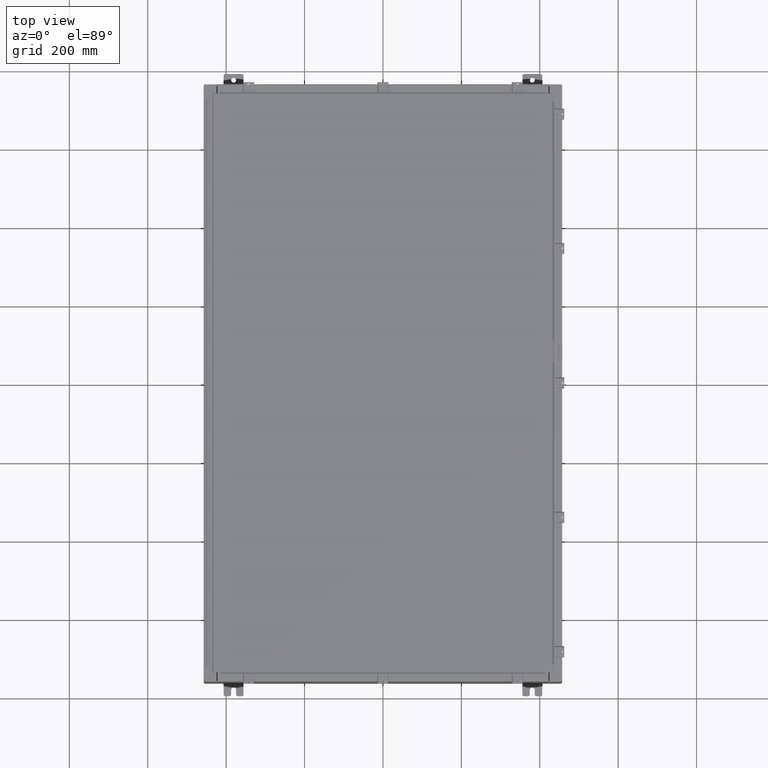
[diagram: clean part render]
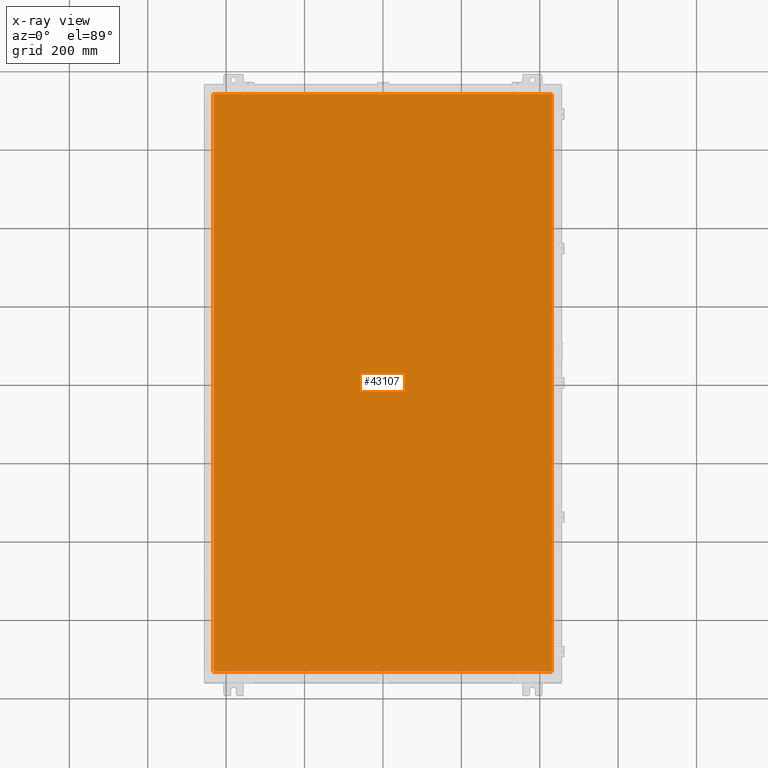
[diagram: x-ray — body ghosted, one internal face saturated and labeled with its STEP entity id]
A machine part, top view, then the same camera in x-ray: the body is ghosted and one INTERNAL B-rep face — a face not visible from any outside direction — is saturated and labeled: STEP entity #43107.
In plain terms, the highlighted planar face has unit normal (0, 0, -1).
Its self-contained STEP definition (entity closure, byte-faithful):
#245 = CARTESIAN_POINT ( 'NONE',  ( -16.99029999999999800, -29.00630000000000000, -0.07470000000000000300 ) ) ;
#1285 = CARTESIAN_POINT ( 'NONE',  ( 16.99030000000000500, -29.00630000000000000, -0.07470000000000019700 ) ) ;
#2215 = ORIENTED_EDGE ( 'NONE', *, *, #3431, .F. ) ;
#3431 = EDGE_CURVE ( 'NONE', #47772, #48023, #16911, .T. ) ;
#3551 = DIRECTION ( 'NONE',  ( 1.000000000000000000, -0.0000000000000000000, -0.0000000000000000000 ) ) ;
#5690 = PLANE ( 'NONE',  #40973 ) ;
#7181 = CARTESIAN_POINT ( 'NONE',  ( -16.99029999999999400, 29.00630000000000000, -0.07469999999999582500 ) ) ;
#8150 = ORIENTED_EDGE ( 'NONE', *, *, #15171, .F. ) ;
#10134 = ORIENTED_EDGE ( 'NONE', *, *, #42626, .F. ) ;
#12218 = VECTOR ( 'NONE', #49464, 39.37007874015748100 ) ;
#14437 = CARTESIAN_POINT ( 'NONE',  ( 16.99030000000000500, -29.00630000000000000, -0.07470000000000000300 ) ) ;
#15171 = EDGE_CURVE ( 'NONE', #48306, #47772, #52269, .T. ) ;
#15451 = CARTESIAN_POINT ( 'NONE',  ( 0.0000000000000000000, 0.0000000000000000000, -0.07470000000000000300 ) ) ;
#16171 = ORIENTED_EDGE ( 'NONE', *, *, #33426, .F. ) ;
#16911 = LINE ( 'NONE', #32682, #39736 ) ;
#20318 = DIRECTION ( 'NONE',  ( -1.000000000000000000, 0.0000000000000000000, -0.0000000000000000000 ) ) ;
#25974 = FACE_OUTER_BOUND ( 'NONE', #52279, .T. ) ;
#27109 = CARTESIAN_POINT ( 'NONE',  ( -16.99029999999999400, 29.00630000000000000, -0.07470000000000000300 ) ) ;
#27974 = VECTOR ( 'NONE', #41180, 39.37007874015748100 ) ;
#32682 = CARTESIAN_POINT ( 'NONE',  ( -16.99029999999999800, -29.00630000000000300, -0.07469999999999804600 ) ) ;
#33426 = EDGE_CURVE ( 'NONE', #48023, #39554, #35399, .T. ) ;
#35399 = LINE ( 'NONE', #1285, #46736 ) ;
#38121 = LINE ( 'NONE', #44582, #12218 ) ;
#39554 = VERTEX_POINT ( 'NONE', #41171 ) ;
#39736 = VECTOR ( 'NONE', #3551, 39.37007874015748100 ) ;
#40201 = DIRECTION ( 'NONE',  ( 0.0000000000000000000, 1.000000000000000000, 0.0000000000000000000 ) ) ;
#40973 = AXIS2_PLACEMENT_3D ( 'NONE', #15451, #49403, #20318 ) ;
#41171 = CARTESIAN_POINT ( 'NONE',  ( 16.99030000000000500, 29.00630000000000000, -0.07470000000000000300 ) ) ;
#41180 = DIRECTION ( 'NONE',  ( 0.0000000000000000000, -1.000000000000000000, 0.0000000000000000000 ) ) ;
#42626 = EDGE_CURVE ( 'NONE', #39554, #48306, #38121, .T. ) ;
#43107 = ADVANCED_FACE ( 'NONE', ( #25974 ), #5690, .T. ) ;
#44582 = CARTESIAN_POINT ( 'NONE',  ( 16.99030000000000500, 29.00630000000000300, -0.07469999999999804600 ) ) ;
#46736 = VECTOR ( 'NONE', #40201, 39.37007874015748100 ) ;
#47772 = VERTEX_POINT ( 'NONE', #245 ) ;
#48023 = VERTEX_POINT ( 'NONE', #14437 ) ;
#48306 = VERTEX_POINT ( 'NONE', #27109 ) ;
#49403 = DIRECTION ( 'NONE',  ( 0.0000000000000000000, 0.0000000000000000000, -1.000000000000000000 ) ) ;
#49464 = DIRECTION ( 'NONE',  ( -1.000000000000000000, -0.0000000000000000000, -0.0000000000000000000 ) ) ;
#52269 = LINE ( 'NONE', #7181, #27974 ) ;
#52279 = EDGE_LOOP ( 'NONE', ( #16171, #2215, #8150, #10134 ) ) ;